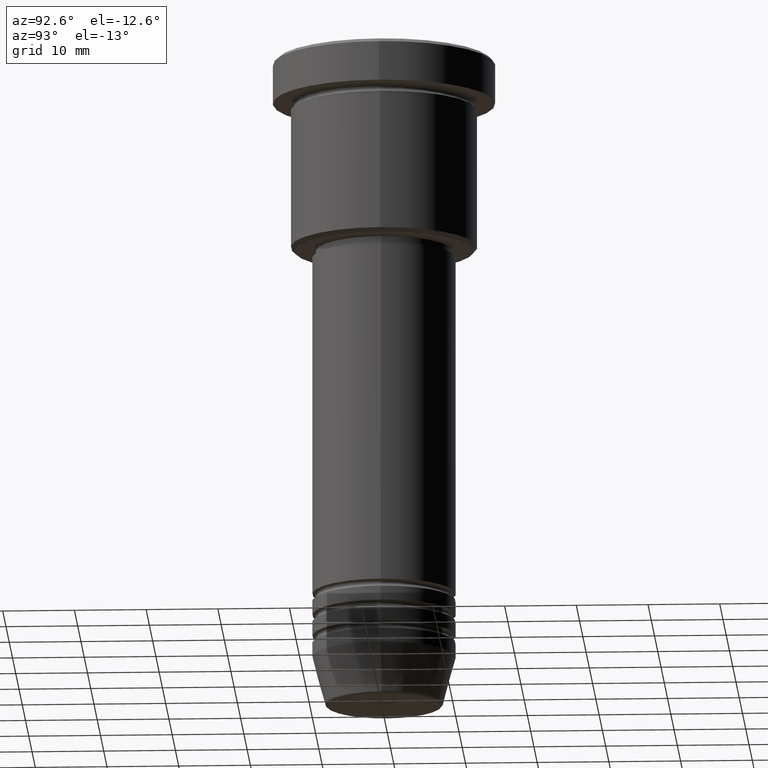
[diagram: clean part render]
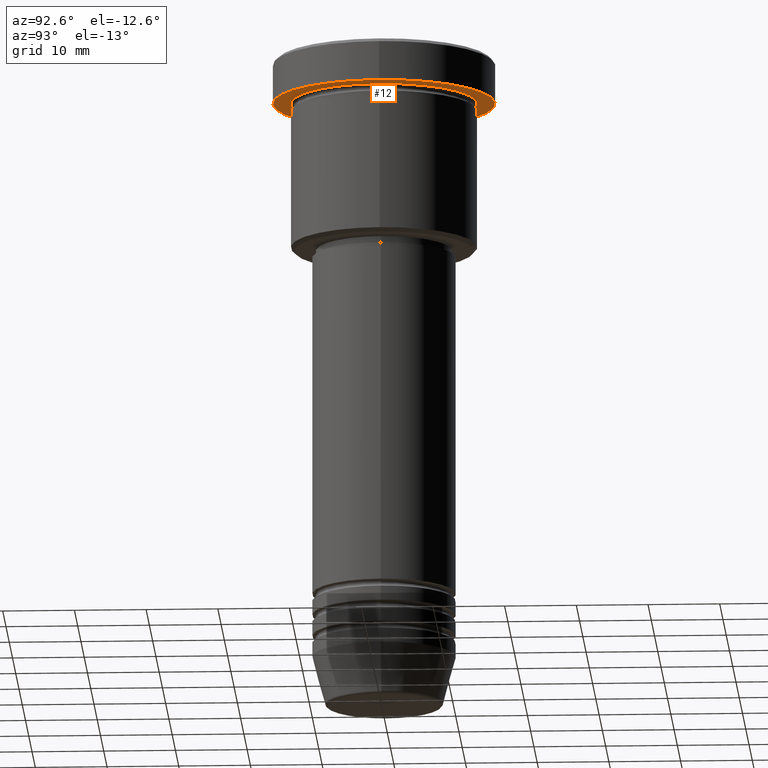
[diagram: same view with one face highlighted and labeled with its STEP entity id]
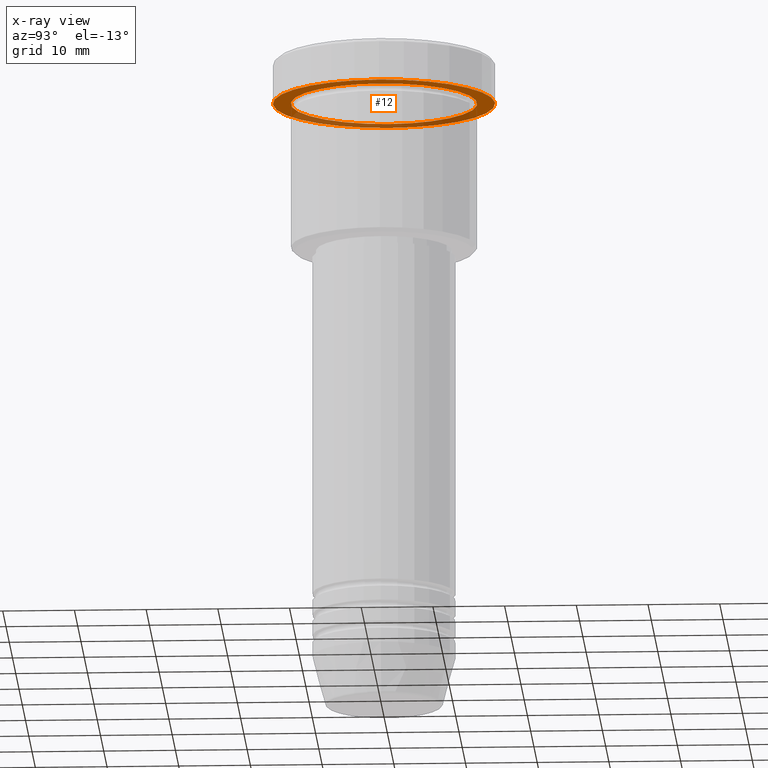
[diagram: x-ray of the same camera — body ghosted, the highlighted face saturated]
A machine part, auxiliary view. The second image highlights one B-rep face of the part: STEP entity #12.
The next image is the same camera in x-ray: the body ghosted, the highlighted face saturated — about 34% of this face is hidden behind the body in this view.
In plain terms, the highlighted planar face has unit normal (0, 0, -1).
Its self-contained STEP definition (entity closure, byte-faithful):
#12 = ADVANCED_FACE ( 'NONE', ( #755, #1035 ), #221, .T. ) ;
#60 = ORIENTED_EDGE ( 'NONE', *, *, #1112, .F. ) ;
#66 = ORIENTED_EDGE ( 'NONE', *, *, #1016, .T. ) ;
#96 = CARTESIAN_POINT ( 'NONE',  ( -15.50000000000000000, 1.898202538678397557E-15, -5.999999999999995559 ) ) ;
#109 = ORIENTED_EDGE ( 'NONE', *, *, #481, .T. ) ;
#133 = CARTESIAN_POINT ( 'NONE',  ( 0.000000000000000000, 0.000000000000000000, -5.999999999999995559 ) ) ;
#151 = AXIS2_PLACEMENT_3D ( 'NONE', #133, #1049, #770 ) ;
#190 = AXIS2_PLACEMENT_3D ( 'NONE', #543, #378, #733 ) ;
#221 = PLANE ( 'NONE',  #425 ) ;
#378 = DIRECTION ( 'NONE',  ( -0.000000000000000000, -0.000000000000000000, 1.000000000000000000 ) ) ;
#400 = VERTEX_POINT ( 'NONE', #96 ) ;
#413 = CARTESIAN_POINT ( 'NONE',  ( 15.50000000000000000, 0.000000000000000000, -5.999999999999995559 ) ) ;
#425 = AXIS2_PLACEMENT_3D ( 'NONE', #580, #944, #855 ) ;
#481 = EDGE_CURVE ( 'NONE', #1107, #1115, #1043, .T. ) ;
#502 = CARTESIAN_POINT ( 'NONE',  ( -13.00000000000000000, 0.000000000000000000, -5.999999999999994671 ) ) ;
#506 = CARTESIAN_POINT ( 'NONE',  ( 13.00000000000000000, 1.592040838891559095E-15, -5.999999999999994671 ) ) ;
#543 = CARTESIAN_POINT ( 'NONE',  ( 0.000000000000000000, 0.000000000000000000, -5.999999999999995559 ) ) ;
#580 = CARTESIAN_POINT ( 'NONE',  ( 0.000000000000000000, 15.50000000000000000, -5.999999999999995559 ) ) ;
#601 = CARTESIAN_POINT ( 'NONE',  ( 0.000000000000000000, 0.000000000000000000, -5.999999999999995559 ) ) ;
#611 = VERTEX_POINT ( 'NONE', #413 ) ;
#629 = DIRECTION ( 'NONE',  ( 1.000000000000000000, 0.000000000000000000, 0.000000000000000000 ) ) ;
#680 = AXIS2_PLACEMENT_3D ( 'NONE', #1130, #782, #961 ) ;
#733 = DIRECTION ( 'NONE',  ( -1.000000000000000000, 0.000000000000000000, 0.000000000000000000 ) ) ;
#755 = FACE_BOUND ( 'NONE', #1054, .T. ) ;
#770 = DIRECTION ( 'NONE',  ( 1.000000000000000000, 0.000000000000000000, 0.000000000000000000 ) ) ;
#782 = DIRECTION ( 'NONE',  ( -0.000000000000000000, -0.000000000000000000, 1.000000000000000000 ) ) ;
#855 = DIRECTION ( 'NONE',  ( -1.000000000000000000, 0.000000000000000000, -0.000000000000000000 ) ) ;
#864 = EDGE_LOOP ( 'NONE', ( #60, #932 ) ) ;
#896 = DIRECTION ( 'NONE',  ( -0.000000000000000000, -0.000000000000000000, 1.000000000000000000 ) ) ;
#910 = AXIS2_PLACEMENT_3D ( 'NONE', #601, #896, #629 ) ;
#932 = ORIENTED_EDGE ( 'NONE', *, *, #1156, .F. ) ;
#944 = DIRECTION ( 'NONE',  ( 0.000000000000000000, 0.000000000000000000, -1.000000000000000000 ) ) ;
#961 = DIRECTION ( 'NONE',  ( -1.000000000000000000, 0.000000000000000000, 0.000000000000000000 ) ) ;
#1001 = CIRCLE ( 'NONE', #680, 13.00000000000000000 ) ;
#1016 = EDGE_CURVE ( 'NONE', #1115, #1107, #1001, .T. ) ;
#1029 = CIRCLE ( 'NONE', #910, 15.50000000000000000 ) ;
#1035 = FACE_OUTER_BOUND ( 'NONE', #864, .T. ) ;
#1043 = CIRCLE ( 'NONE', #190, 13.00000000000000000 ) ;
#1049 = DIRECTION ( 'NONE',  ( -0.000000000000000000, -0.000000000000000000, 1.000000000000000000 ) ) ;
#1054 = EDGE_LOOP ( 'NONE', ( #109, #66 ) ) ;
#1107 = VERTEX_POINT ( 'NONE', #502 ) ;
#1112 = EDGE_CURVE ( 'NONE', #611, #400, #1136, .T. ) ;
#1115 = VERTEX_POINT ( 'NONE', #506 ) ;
#1130 = CARTESIAN_POINT ( 'NONE',  ( 0.000000000000000000, 0.000000000000000000, -5.999999999999995559 ) ) ;
#1136 = CIRCLE ( 'NONE', #151, 15.50000000000000000 ) ;
#1156 = EDGE_CURVE ( 'NONE', #400, #611, #1029, .T. ) ;